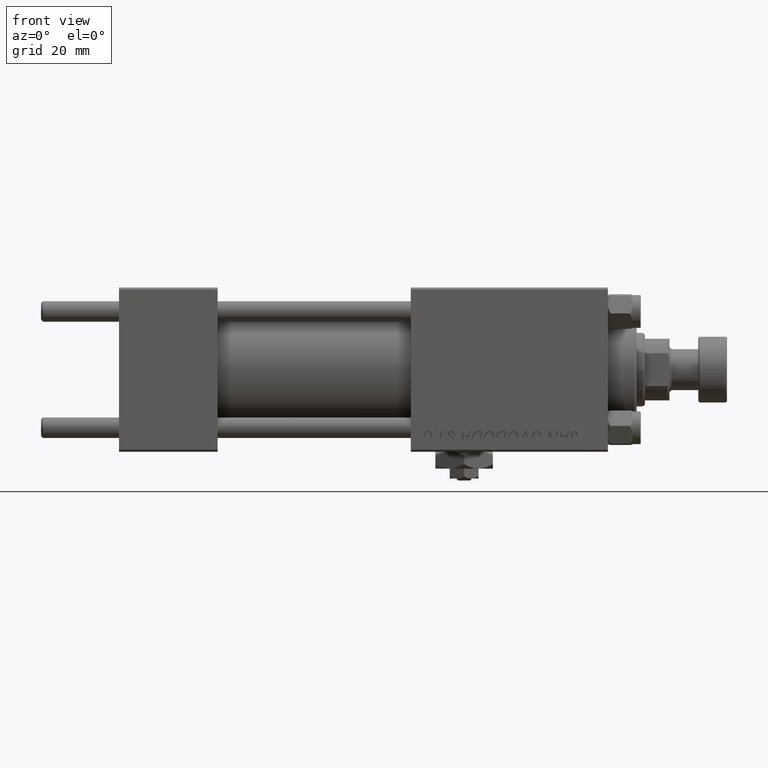
[diagram: clean part render]
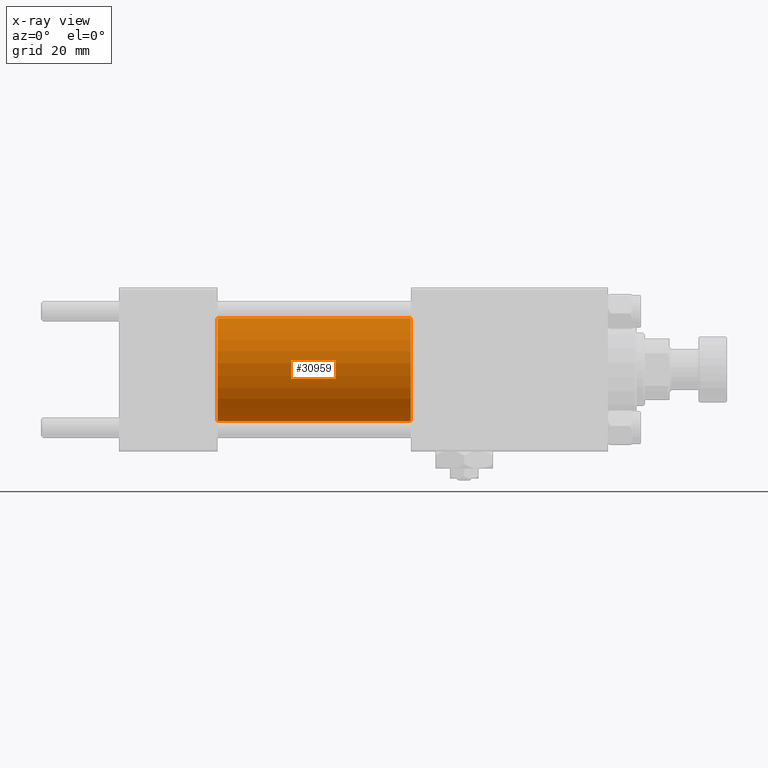
[diagram: x-ray — body ghosted, one internal face saturated and labeled with its STEP entity id]
A machine part, front view, then the same camera in x-ray: the body is ghosted and one INTERNAL B-rep face — a face not visible from any outside direction — is saturated and labeled: STEP entity #30959.
In plain terms, the highlighted cylindrical surface (partial cylindrical patch) has radius 12.5 mm, axis along (-1, -0, -0).
Its self-contained STEP definition (entity closure, byte-faithful):
#2314 = CARTESIAN_POINT ( 'NONE',  ( 71.00000000000001421, 1.530808498934191127E-15, -12.49999999999999645 ) ) ;
#3807 = DIRECTION ( 'NONE',  ( 0.000000000000000000, 0.000000000000000000, -1.000000000000000000 ) ) ;
#6004 = DIRECTION ( 'NONE',  ( -1.000000000000000000, -0.000000000000000000, -0.000000000000000000 ) ) ;
#7024 = DIRECTION ( 'NONE',  ( 0.000000000000000000, 0.000000000000000000, 1.000000000000000000 ) ) ;
#7052 = EDGE_CURVE ( 'NONE', #21590, #40216, #21765, .T. ) ;
#7530 = DIRECTION ( 'NONE',  ( -1.000000000000000000, -0.000000000000000000, -0.000000000000000000 ) ) ;
#9741 = VECTOR ( 'NONE', #22515, 1000.000000000000000 ) ;
#11727 = CYLINDRICAL_SURFACE ( 'NONE', #25191, 12.49999999999999645 ) ;
#12035 = VECTOR ( 'NONE', #6004, 1000.000000000000000 ) ;
#12375 = CARTESIAN_POINT ( 'NONE',  ( 71.00000000000001421, 1.530808498934191127E-15, -12.49999999999999645 ) ) ;
#12702 = VERTEX_POINT ( 'NONE', #47935 ) ;
#12734 = CARTESIAN_POINT ( 'NONE',  ( 71.00000000000001421, 0.000000000000000000, 0.000000000000000000 ) ) ;
#15396 = ORIENTED_EDGE ( 'NONE', *, *, #17633, .T. ) ;
#17506 = EDGE_CURVE ( 'NONE', #12702, #43582, #35095, .T. ) ;
#17633 = EDGE_CURVE ( 'NONE', #12702, #21590, #24001, .T. ) ;
#21590 = VERTEX_POINT ( 'NONE', #12375 ) ;
#21765 = LINE ( 'NONE', #2314, #12035 ) ;
#22515 = DIRECTION ( 'NONE',  ( -1.000000000000000000, -0.000000000000000000, -0.000000000000000000 ) ) ;
#24001 = CIRCLE ( 'NONE', #24117, 12.49999999999999645 ) ;
#24117 = AXIS2_PLACEMENT_3D ( 'NONE', #12734, #44281, #3807 ) ;
#24880 = ORIENTED_EDGE ( 'NONE', *, *, #17506, .F. ) ;
#24927 = DIRECTION ( 'NONE',  ( 0.000000000000000000, 0.000000000000000000, -1.000000000000000000 ) ) ;
#25093 = AXIS2_PLACEMENT_3D ( 'NONE', #45957, #42022, #24927 ) ;
#25191 = AXIS2_PLACEMENT_3D ( 'NONE', #40090, #7530, #7024 ) ;
#26983 = CARTESIAN_POINT ( 'NONE',  ( 71.00000000000001421, 0.000000000000000000, 12.49999999999999645 ) ) ;
#29037 = CARTESIAN_POINT ( 'NONE',  ( 24.00000000000000000, 0.000000000000000000, 12.49999999999999645 ) ) ;
#30959 = ADVANCED_FACE ( 'NONE', ( #43279 ), #11727, .F. ) ;
#31968 = EDGE_LOOP ( 'NONE', ( #15396, #44854, #47577, #24880 ) ) ;
#34331 = CIRCLE ( 'NONE', #25093, 12.49999999999999645 ) ;
#35095 = LINE ( 'NONE', #26983, #9741 ) ;
#40090 = CARTESIAN_POINT ( 'NONE',  ( 71.00000000000001421, 0.000000000000000000, 0.000000000000000000 ) ) ;
#40216 = VERTEX_POINT ( 'NONE', #49296 ) ;
#42022 = DIRECTION ( 'NONE',  ( 1.000000000000000000, 0.000000000000000000, 0.000000000000000000 ) ) ;
#42162 = EDGE_CURVE ( 'NONE', #43582, #40216, #34331, .T. ) ;
#43279 = FACE_OUTER_BOUND ( 'NONE', #31968, .T. ) ;
#43582 = VERTEX_POINT ( 'NONE', #29037 ) ;
#44281 = DIRECTION ( 'NONE',  ( 1.000000000000000000, 0.000000000000000000, 0.000000000000000000 ) ) ;
#44854 = ORIENTED_EDGE ( 'NONE', *, *, #7052, .T. ) ;
#45957 = CARTESIAN_POINT ( 'NONE',  ( 24.00000000000000000, 0.000000000000000000, 0.000000000000000000 ) ) ;
#47577 = ORIENTED_EDGE ( 'NONE', *, *, #42162, .F. ) ;
#47935 = CARTESIAN_POINT ( 'NONE',  ( 71.00000000000001421, 0.000000000000000000, 12.49999999999999645 ) ) ;
#49296 = CARTESIAN_POINT ( 'NONE',  ( 24.00000000000000000, 1.530808498934191127E-15, -12.49999999999999645 ) ) ;